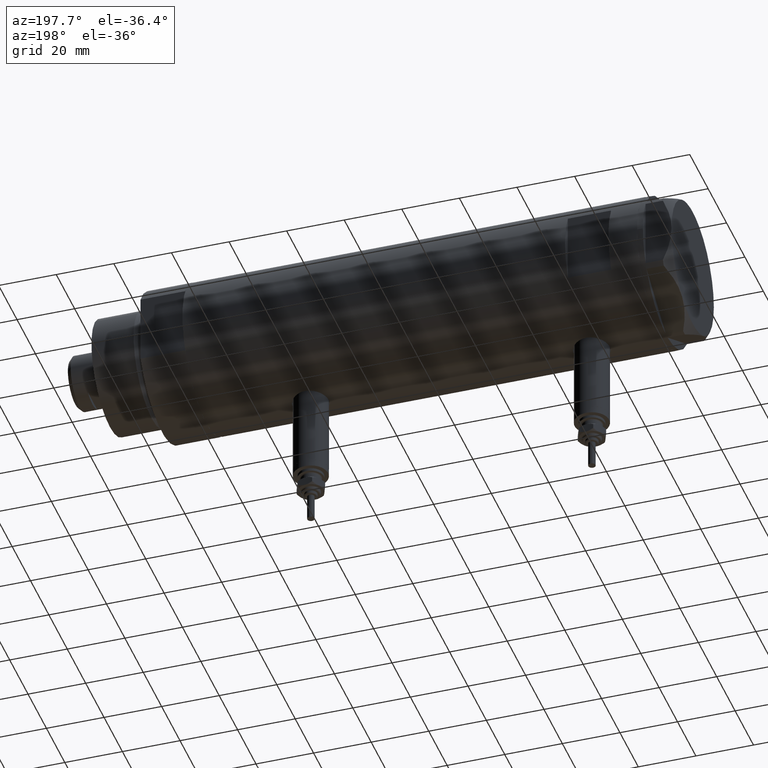
[diagram: clean part render]
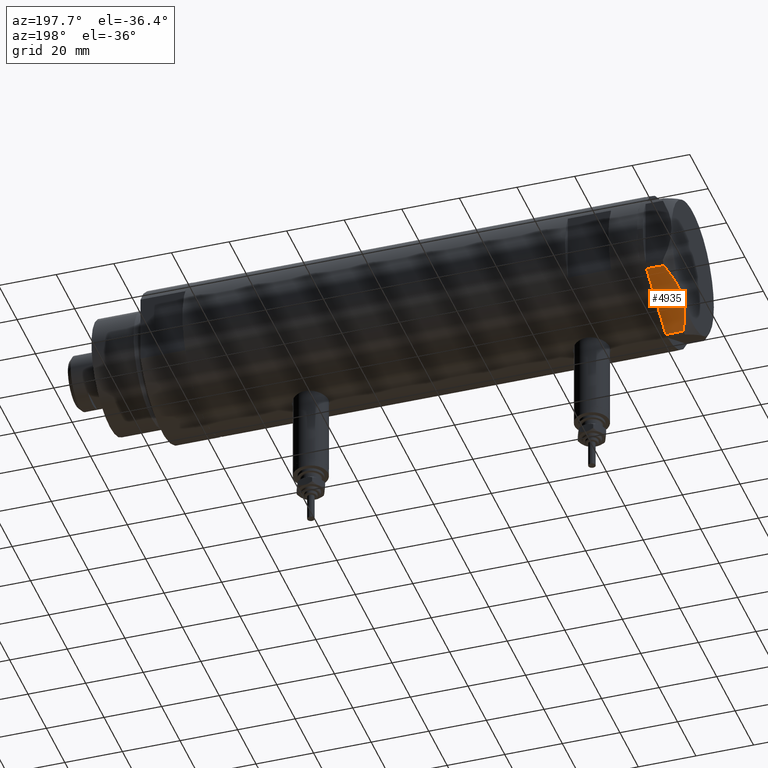
[diagram: same view with one face highlighted and labeled with its STEP entity id]
A machine part, auxiliary view. The second image highlights one B-rep face of the part: STEP entity #4935.
In plain terms, the highlighted planar face has unit normal (0, -0.5, 0.866).
Its self-contained STEP definition (entity closure, byte-faithful):
#24 = CARTESIAN_POINT ( 'NONE',  ( 22.99999999999981171, 13.27905619136164184, 0.000000000000000000 ) ) ;
#45 = EDGE_LOOP ( 'NONE', ( #2546, #6176, #2077, #634, #141, #5568, #1244 ) ) ;
#141 = ORIENTED_EDGE ( 'NONE', *, *, #2674, .T. ) ;
#233 = B_SPLINE_CURVE_WITH_KNOTS ( 'NONE', 3,
 ( #1490, #5750, #2360, #2803, #847, #5163, #4171, #5301, #5263, #5650 ),
 .UNSPECIFIED., .F., .F.,
 ( 4, 2, 2, 2, 4 ),
 ( 0.001228959670438493522, 0.007497079744270714746, 0.01063113978118682655, 0.01219816979964488159, 0.01376519981810293489 ),
 .UNSPECIFIED. ) ;
#363 = CARTESIAN_POINT ( 'NONE',  ( 0.9699484522385816154, 25.99811238272274494, 9.000000000000000000 ) ) ;
#412 = CARTESIAN_POINT ( 'NONE',  ( 22.99999999999981171, 13.27905619136164184, 0.000000000000000000 ) ) ;
#435 = CARTESIAN_POINT ( 'NONE',  ( 22.03005154776124286, 13.83905619136163168, 0.000000000000000000 ) ) ;
#509 = DIRECTION ( 'NONE',  ( -0.8660254037844415942, 0.4999999999999949485, 0.000000000000000000 ) ) ;
#634 = ORIENTED_EDGE ( 'NONE', *, *, #764, .T. ) ;
#764 = EDGE_CURVE ( 'NONE', #2598, #4766, #4793, .T. ) ;
#794 = VECTOR ( 'NONE', #5734, 999.9999999999998863 ) ;
#847 = CARTESIAN_POINT ( 'NONE',  ( 15.16323225988329959, 17.80361615569442790, 8.637313967156861949 ) ) ;
#918 = CARTESIAN_POINT ( 'NONE',  ( 9.678244919010086988, 20.97037507344920826, 9.000000000000001776 ) ) ;
#996 = FACE_OUTER_BOUND ( 'NONE', #45, .T. ) ;
#1032 = CARTESIAN_POINT ( 'NONE',  ( 22.99999999999981171, 13.27905619136164184, 9.000000000000000000 ) ) ;
#1244 = ORIENTED_EDGE ( 'NONE', *, *, #1874, .F. ) ;
#1260 = CARTESIAN_POINT ( 'NONE',  ( 5.671686373602799591, 23.28356272816407824, 8.040681765829278405 ) ) ;
#1288 = CARTESIAN_POINT ( 'NONE',  ( 3.925137811030050994, 24.29193301091819635, 7.397272853991373687 ) ) ;
#1398 = VECTOR ( 'NONE', #509, 999.9999999999998863 ) ;
#1490 = CARTESIAN_POINT ( 'NONE',  ( 22.03005154776138852, 13.83905619136154819, 5.983800287807532037 ) ) ;
#1793 = DIRECTION ( 'NONE',  ( 0.000000000000000000, 0.000000000000000000, 1.000000000000000000 ) ) ;
#1838 = EDGE_CURVE ( 'NONE', #4666, #6080, #233, .T. ) ;
#1874 = EDGE_CURVE ( 'NONE', #6080, #4125, #3608, .T. ) ;
#2075 = DIRECTION ( 'NONE',  ( 0.000000000000000000, 0.000000000000000000, -1.000000000000000000 ) ) ;
#2077 = ORIENTED_EDGE ( 'NONE', *, *, #2550, .T. ) ;
#2287 = CARTESIAN_POINT ( 'NONE',  ( 5.229981517798067081, 23.53858114556529912, 7.892128867758392730 ) ) ;
#2298 = EDGE_CURVE ( 'NONE', #3252, #4125, #6120, .T. ) ;
#2360 = CARTESIAN_POINT ( 'NONE',  ( 18.67981377008996446, 15.77331687414937278, 7.629374868826049649 ) ) ;
#2451 = LINE ( 'NONE', #24, #5817 ) ;
#2493 = LINE ( 'NONE', #3035, #4581 ) ;
#2528 = VERTEX_POINT ( 'NONE', #435 ) ;
#2546 = ORIENTED_EDGE ( 'NONE', *, *, #1838, .F. ) ;
#2550 = EDGE_CURVE ( 'NONE', #2528, #2598, #2451, .T. ) ;
#2598 = VERTEX_POINT ( 'NONE', #5359 ) ;
#2674 = EDGE_CURVE ( 'NONE', #4766, #3252, #4188, .T. ) ;
#2803 = CARTESIAN_POINT ( 'NONE',  ( 16.05322244309623869, 17.28978008384030929, 8.426899937603700153 ) ) ;
#3035 = CARTESIAN_POINT ( 'NONE',  ( 22.03005154776124286, 13.83905619136163168, 9.000000000000000000 ) ) ;
#3048 = DIRECTION ( 'NONE',  ( -0.4999999999999949485, -0.8660254037844415942, 0.000000000000000000 ) ) ;
#3168 = CARTESIAN_POINT ( 'NONE',  ( 22.99999999999981171, 13.27905619136164184, 0.000000000000000000 ) ) ;
#3211 = CARTESIAN_POINT ( 'NONE',  ( 0.9699484522385767304, 25.99811238272274849, 5.983800287807627960 ) ) ;
#3242 = CARTESIAN_POINT ( 'NONE',  ( 2.640413878806739945, 25.03366871902167290, 6.844201024438365089 ) ) ;
#3252 = VERTEX_POINT ( 'NONE', #4512 ) ;
#3262 = CARTESIAN_POINT ( 'NONE',  ( 22.03005154776138852, 13.83905619136154819, 5.983800287807532037 ) ) ;
#3279 = CARTESIAN_POINT ( 'NONE',  ( 4.357207709416038632, 24.04247733877631532, 7.570552255229681116 ) ) ;
#3608 = B_SPLINE_CURVE_WITH_KNOTS ( 'NONE', 3,
 ( #6130, #918, #4788, #1260, #2287, #3279, #1288, #3242, #4313, #3211 ),
 .UNSPECIFIED., .F., .F.,
 ( 4, 2, 2, 2, 4 ),
 ( 0.01376519981810293489, 0.01998941321701561136, 0.02154546656674377961, 0.02310151991647194786, 0.02621362661592828783 ),
 .UNSPECIFIED. ) ;
#3847 = EDGE_CURVE ( 'NONE', #4666, #2528, #2493, .T. ) ;
#3888 = AXIS2_PLACEMENT_3D ( 'NONE', #1032, #3048, #5866 ) ;
#3912 = CARTESIAN_POINT ( 'NONE',  ( 11.49999999999990408, 19.91858428704219364, 9.000000000000000000 ) ) ;
#4125 = VERTEX_POINT ( 'NONE', #4229 ) ;
#4171 = CARTESIAN_POINT ( 'NONE',  ( 13.34348161667005073, 18.85424967941157703, 8.907842277728345692 ) ) ;
#4188 = LINE ( 'NONE', #3168, #794 ) ;
#4229 = CARTESIAN_POINT ( 'NONE',  ( 0.9699484522385767304, 25.99811238272274849, 5.983800287807627960 ) ) ;
#4313 = CARTESIAN_POINT ( 'NONE',  ( 1.799196345396824492, 25.51934588838292228, 6.431317509509382191 ) ) ;
#4512 = CARTESIAN_POINT ( 'NONE',  ( 0.9699484522385816154, 25.99811238272274494, 0.000000000000000000 ) ) ;
#4581 = VECTOR ( 'NONE', #2075, 1000.000000000000000 ) ;
#4666 = VERTEX_POINT ( 'NONE', #3262 ) ;
#4766 = VERTEX_POINT ( 'NONE', #5689 ) ;
#4788 = CARTESIAN_POINT ( 'NONE',  ( 7.884645426989626671, 22.00591022298560517, 8.707651728476925257 ) ) ;
#4793 = LINE ( 'NONE', #412, #1398 ) ;
#4849 = DIRECTION ( 'NONE',  ( -0.8660254037844415942, 0.4999999999999949485, 0.000000000000000000 ) ) ;
#4935 = ADVANCED_FACE ( 'NONE', ( #996 ), #5417, .F. ) ;
#5163 = CARTESIAN_POINT ( 'NONE',  ( 13.80210138309697498, 18.58946543380931260, 8.852712638955710034 ) ) ;
#5263 = CARTESIAN_POINT ( 'NONE',  ( 11.95865151389051917, 19.65378171203322566, 9.000000000000005329 ) ) ;
#5299 = VECTOR ( 'NONE', #1793, 1000.000000000000000 ) ;
#5301 = CARTESIAN_POINT ( 'NONE',  ( 12.41906678023027588, 19.38796083407295967, 8.981686407609410949 ) ) ;
#5359 = CARTESIAN_POINT ( 'NONE',  ( 21.99999999999987210, 13.85640646055121827, 0.000000000000000000 ) ) ;
#5417 = PLANE ( 'NONE',  #3888 ) ;
#5568 = ORIENTED_EDGE ( 'NONE', *, *, #2298, .T. ) ;
#5650 = CARTESIAN_POINT ( 'NONE',  ( 11.49999999999990408, 19.91858428704219364, 9.000000000000000000 ) ) ;
#5689 = CARTESIAN_POINT ( 'NONE',  ( 0.9999999999999297229, 25.98076211353316722, 0.000000000000000000 ) ) ;
#5734 = DIRECTION ( 'NONE',  ( -0.8660254037844415942, 0.4999999999999949485, 0.000000000000000000 ) ) ;
#5750 = CARTESIAN_POINT ( 'NONE',  ( 20.37350567916420019, 14.79546339452108050, 6.877782426143415506 ) ) ;
#5817 = VECTOR ( 'NONE', #4849, 999.9999999999998863 ) ;
#5866 = DIRECTION ( 'NONE',  ( 0.8660254037844415942, -0.4999999999999949485, 0.000000000000000000 ) ) ;
#6080 = VERTEX_POINT ( 'NONE', #3912 ) ;
#6120 = LINE ( 'NONE', #363, #5299 ) ;
#6130 = CARTESIAN_POINT ( 'NONE',  ( 11.49999999999990408, 19.91858428704219364, 9.000000000000000000 ) ) ;
#6176 = ORIENTED_EDGE ( 'NONE', *, *, #3847, .T. ) ;